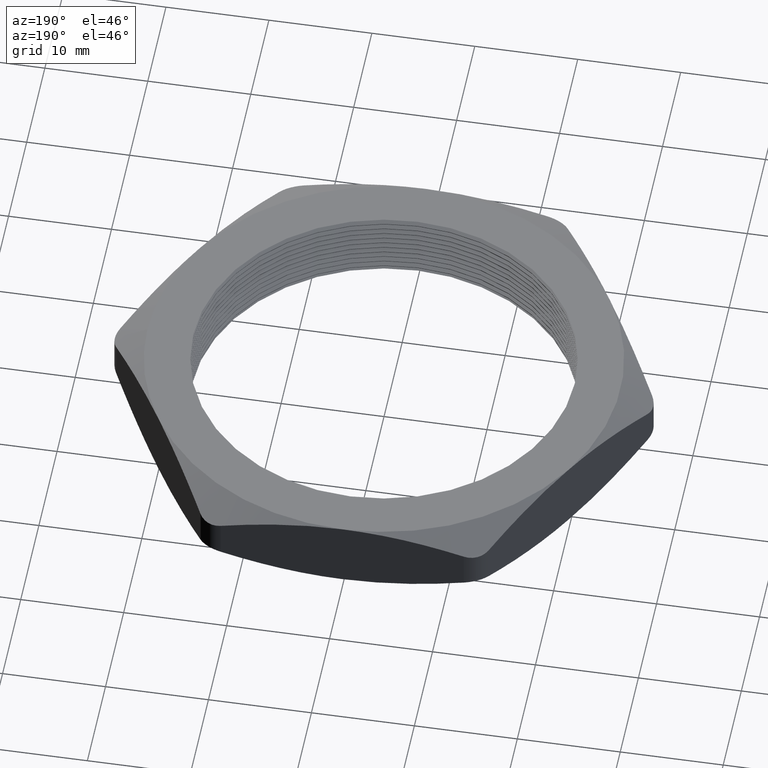
[diagram: clean part render]
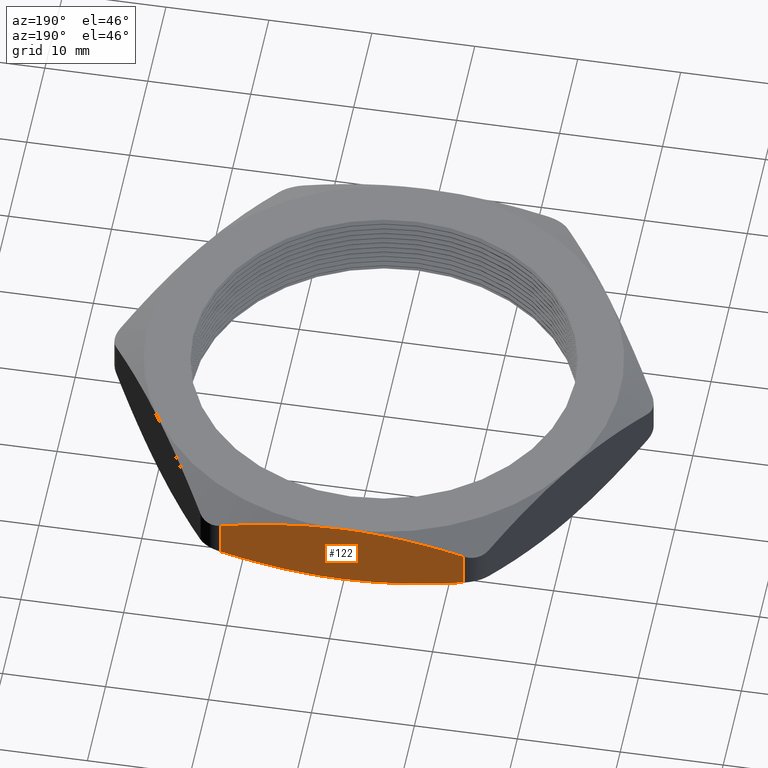
[diagram: same view with one face highlighted and labeled with its STEP entity id]
A machine part, auxiliary view. The second image highlights one B-rep face of the part: STEP entity #122.
In plain terms, the highlighted planar face has unit normal (0, -1, 0).
Its self-contained STEP definition (entity closure, byte-faithful):
#95 = ORIENTED_EDGE ( 'NONE', *, *, #96, .F. ) ;
#96 = EDGE_CURVE ( 'NONE', #662, #102, #975, .T. ) ;
#100 = EDGE_CURVE ( 'NONE', #2709, #102, #974, .T. ) ;
#102 = VERTEX_POINT ( 'NONE', #1019 ) ;
#111 = ORIENTED_EDGE ( 'NONE', *, *, #117, .F. ) ;
#113 = EDGE_LOOP ( 'NONE', ( #111, #116, #2710, #2708, #2704, #95 ) ) ;
#114 = EDGE_CURVE ( 'NONE', #115, #2716, #1046, .T. ) ;
#115 = VERTEX_POINT ( 'NONE', #1042 ) ;
#116 = ORIENTED_EDGE ( 'NONE', *, *, #114, .T. ) ;
#117 = EDGE_CURVE ( 'NONE', #115, #662, #1041, .T. ) ;
#122 = ADVANCED_FACE ( 'NONE', ( #1031 ), #1027, .F. ) ;
#662 = VERTEX_POINT ( 'NONE', #2101 ) ;
#967 = CARTESIAN_POINT ( 'NONE',  ( 0.3130892096662780700, 0.9050000000000001400, 0.02868035123035733400 ) ) ;
#968 = CARTESIAN_POINT ( 'NONE',  ( 0.1966484677014064000, 0.9050000000000003600, 0.01175282682652989200 ) ) ;
#969 = CARTESIAN_POINT ( 'NONE',  ( 0.1574463951343061100, 0.9050000000000003600, 0.007367026951401334100 ) ) ;
#970 = CARTESIAN_POINT ( 'NONE',  ( 0.07853249257741318200, 0.9050000000000001400, 0.001476861530155254700 ) ) ;
#971 = CARTESIAN_POINT ( 'NONE',  ( 0.03920242905112081300, 0.9050000000000000300, -1.209411872195115100E-016 ) ) ;
#972 = CARTESIAN_POINT ( 'NONE',  ( -1.182924880895400800E-016, 0.9050000000000001400, 0.0000000000000000000 ) ) ;
#973 = CARTESIAN_POINT ( 'NONE',  ( 0.4647669666976493900, 0.9050000000000003600, 0.2700000000000000200 ) ) ;
#974 = LINE ( 'NONE', #973, #1023 ) ;
#975 = B_SPLINE_CURVE_WITH_KNOTS ( 'NONE', 3,
 ( #972, #971, #970, #969, #968, #967, #1025, #1024 ),
 .UNSPECIFIED., .F., .F.,
 ( 4, 2, 2, 4 ),
 ( 0.03785656902270958400, 0.04083580774288996700, 0.04381504646307034200, 0.04977352390343110800 ),
 .UNSPECIFIED. ) ;
#1019 = CARTESIAN_POINT ( 'NONE',  ( 0.4647669666976494400, 0.9050000000000003600, 0.06487447093666891300 ) ) ;
#1022 = DIRECTION ( 'NONE',  ( 0.0000000000000000000, 0.0000000000000000000, -1.000000000000000000 ) ) ;
#1023 = VECTOR ( 'NONE', #1022, 39.37007874015748100 ) ;
#1024 = CARTESIAN_POINT ( 'NONE',  ( 0.4647669666976494400, 0.9050000000000003600, 0.06487447093666891300 ) ) ;
#1025 = CARTESIAN_POINT ( 'NONE',  ( 0.3893959658073279900, 0.9050000000000001400, 0.04499514108336844000 ) ) ;
#1027 = PLANE ( 'NONE',  #1030 ) ;
#1028 = CARTESIAN_POINT ( 'NONE',  ( 0.5225019936166119800, 0.9050000000000003600, 0.2700000000000000200 ) ) ;
#1030 = AXIS2_PLACEMENT_3D ( 'NONE', #1028, #1073, #1072 ) ;
#1031 = FACE_OUTER_BOUND ( 'NONE', #113, .T. ) ;
#1032 = CARTESIAN_POINT ( 'NONE',  ( -1.182924880895400800E-016, 0.9050000000000001400, 0.0000000000000000000 ) ) ;
#1033 = CARTESIAN_POINT ( 'NONE',  ( -0.07842741064750596800, 0.9049999999999999200, -1.148348429628402000E-016 ) ) ;
#1034 = CARTESIAN_POINT ( 'NONE',  ( -0.1563390355025627300, 0.9050000000000000300, 0.005968169600309584800 ) ) ;
#1035 = CARTESIAN_POINT ( 'NONE',  ( -0.2725300247029260300, 0.9050000000000001400, 0.02274762075494665000 ) ) ;
#1036 = CARTESIAN_POINT ( 'NONE',  ( -0.3111489786867194200, 0.9050000000000004700, 0.02962950257265925200 ) ) ;
#1037 = CARTESIAN_POINT ( 'NONE',  ( -0.3881909402097283300, 0.9049999999999999200, 0.04566056715149940900 ) ) ;
#1038 = CARTESIAN_POINT ( 'NONE',  ( -0.4266887770959835200, 0.9050000000000004700, 0.05483123305517183200 ) ) ;
#1039 = CARTESIAN_POINT ( 'NONE',  ( -0.4647669666975992600, 0.9050000000000001400, 0.06487447093665491000 ) ) ;
#1041 = B_SPLINE_CURVE_WITH_KNOTS ( 'NONE', 3,
 ( #1039, #1038, #1037, #1036, #1035, #1034, #1033, #1032 ),
 .UNSPECIFIED., .F., .F.,
 ( 4, 2, 2, 4 ),
 ( 0.02593618632296181700, 0.02891628199789875900, 0.03189637767283570000, 0.03785656902270958400 ),
 .UNSPECIFIED. ) ;
#1042 = CARTESIAN_POINT ( 'NONE',  ( -0.4647669666975992600, 0.9050000000000001400, 0.06487447093665491000 ) ) ;
#1043 = DIRECTION ( 'NONE',  ( 0.0000000000000000000, 0.0000000000000000000, 1.000000000000000000 ) ) ;
#1044 = VECTOR ( 'NONE', #1043, 39.37007874015748100 ) ;
#1045 = CARTESIAN_POINT ( 'NONE',  ( -0.4647669666976487800, 0.9050000000000001400, 0.2700000000000000200 ) ) ;
#1046 = LINE ( 'NONE', #1045, #1044 ) ;
#1072 = DIRECTION ( 'NONE',  ( 1.000000000000000000, 1.307099315906520000E-016, 0.0000000000000000000 ) ) ;
#1073 = DIRECTION ( 'NONE',  ( 1.307099315906520000E-016, -1.000000000000000000, 0.0000000000000000000 ) ) ;
#2101 = CARTESIAN_POINT ( 'NONE',  ( -1.182924880895400800E-016, 0.9050000000000001400, 0.0000000000000000000 ) ) ;
#2493 = CARTESIAN_POINT ( 'NONE',  ( -0.4647669666975992600, 0.9050000000000001400, 0.2051255290633451100 ) ) ;
#2498 = CARTESIAN_POINT ( 'NONE',  ( -0.4647669666975992600, 0.9050000000000001400, 0.2051255290633451100 ) ) ;
#2499 = CARTESIAN_POINT ( 'NONE',  ( -0.4266887770959830200, 0.9050000000000001400, 0.2151687669448282800 ) ) ;
#2500 = CARTESIAN_POINT ( 'NONE',  ( -0.3881909402097275000, 0.9050000000000003600, 0.2243394328485008300 ) ) ;
#2501 = CARTESIAN_POINT ( 'NONE',  ( -0.3111489786867185400, 0.9050000000000001400, 0.2403704974273409600 ) ) ;
#2502 = CARTESIAN_POINT ( 'NONE',  ( -0.2725300247029252000, 0.9050000000000001400, 0.2472523792450535000 ) ) ;
#2503 = CARTESIAN_POINT ( 'NONE',  ( -0.1563390355025620100, 0.9049999999999999200, 0.2640318303996904100 ) ) ;
#2504 = CARTESIAN_POINT ( 'NONE',  ( -0.07842741064750552400, 0.9050000000000001400, 0.2700000000000000700 ) ) ;
#2505 = CARTESIAN_POINT ( 'NONE',  ( -1.182924880895400800E-016, 0.9050000000000001400, 0.2700000000000000200 ) ) ;
#2508 = CARTESIAN_POINT ( 'NONE',  ( 0.4647669666976493300, 0.9050000000000003600, 0.2051255290633311700 ) ) ;
#2509 = B_SPLINE_CURVE_WITH_KNOTS ( 'NONE', 3,
 ( #2505, #2504, #2503, #2502, #2501, #2500, #2499, #2498 ),
 .UNSPECIFIED., .F., .F.,
 ( 4, 2, 2, 4 ),
 ( 0.07465080558441927700, 0.08061335724402032800, 0.08359463307382086800, 0.08657590890362139300 ),
 .UNSPECIFIED. ) ;
#2510 = CARTESIAN_POINT ( 'NONE',  ( -1.182924880895400800E-016, 0.9050000000000001400, 0.2700000000000000200 ) ) ;
#2511 = CARTESIAN_POINT ( 'NONE',  ( 0.03920242905112125000, 0.9050000000000001400, 0.2700000000000001300 ) ) ;
#2512 = CARTESIAN_POINT ( 'NONE',  ( 0.07853249257741354300, 0.9050000000000003600, 0.2685231384698447700 ) ) ;
#2513 = CARTESIAN_POINT ( 'NONE',  ( 0.1574463951343063900, 0.9050000000000003600, 0.2626329730485987300 ) ) ;
#2514 = CARTESIAN_POINT ( 'NONE',  ( 0.1966484677014068100, 0.9050000000000001400, 0.2582471731734700700 ) ) ;
#2515 = CARTESIAN_POINT ( 'NONE',  ( 0.3130892096662783500, 0.9050000000000001400, 0.2413196487696425400 ) ) ;
#2516 = CARTESIAN_POINT ( 'NONE',  ( 0.3893959658073278800, 0.9050000000000001400, 0.2250048589166314900 ) ) ;
#2517 = CARTESIAN_POINT ( 'NONE',  ( 0.4647669666976493300, 0.9050000000000003600, 0.2051255290633311700 ) ) ;
#2518 = CARTESIAN_POINT ( 'NONE',  ( -1.182924880895400800E-016, 0.9050000000000001400, 0.2700000000000000200 ) ) ;
#2519 = B_SPLINE_CURVE_WITH_KNOTS ( 'NONE', 3,
 ( #2517, #2516, #2515, #2514, #2513, #2512, #2511, #2510 ),
 .UNSPECIFIED., .F., .F.,
 ( 4, 2, 2, 4 ),
 ( 0.06272913144170227900, 0.06868996851306077800, 0.07167038704874002800, 0.07465080558441927700 ),
 .UNSPECIFIED. ) ;
#2704 = ORIENTED_EDGE ( 'NONE', *, *, #100, .T. ) ;
#2706 = EDGE_CURVE ( 'NONE', #2709, #2711, #2519, .T. ) ;
#2707 = EDGE_CURVE ( 'NONE', #2711, #2716, #2509, .T. ) ;
#2708 = ORIENTED_EDGE ( 'NONE', *, *, #2706, .F. ) ;
#2709 = VERTEX_POINT ( 'NONE', #2508 ) ;
#2710 = ORIENTED_EDGE ( 'NONE', *, *, #2707, .F. ) ;
#2711 = VERTEX_POINT ( 'NONE', #2518 ) ;
#2716 = VERTEX_POINT ( 'NONE', #2493 ) ;